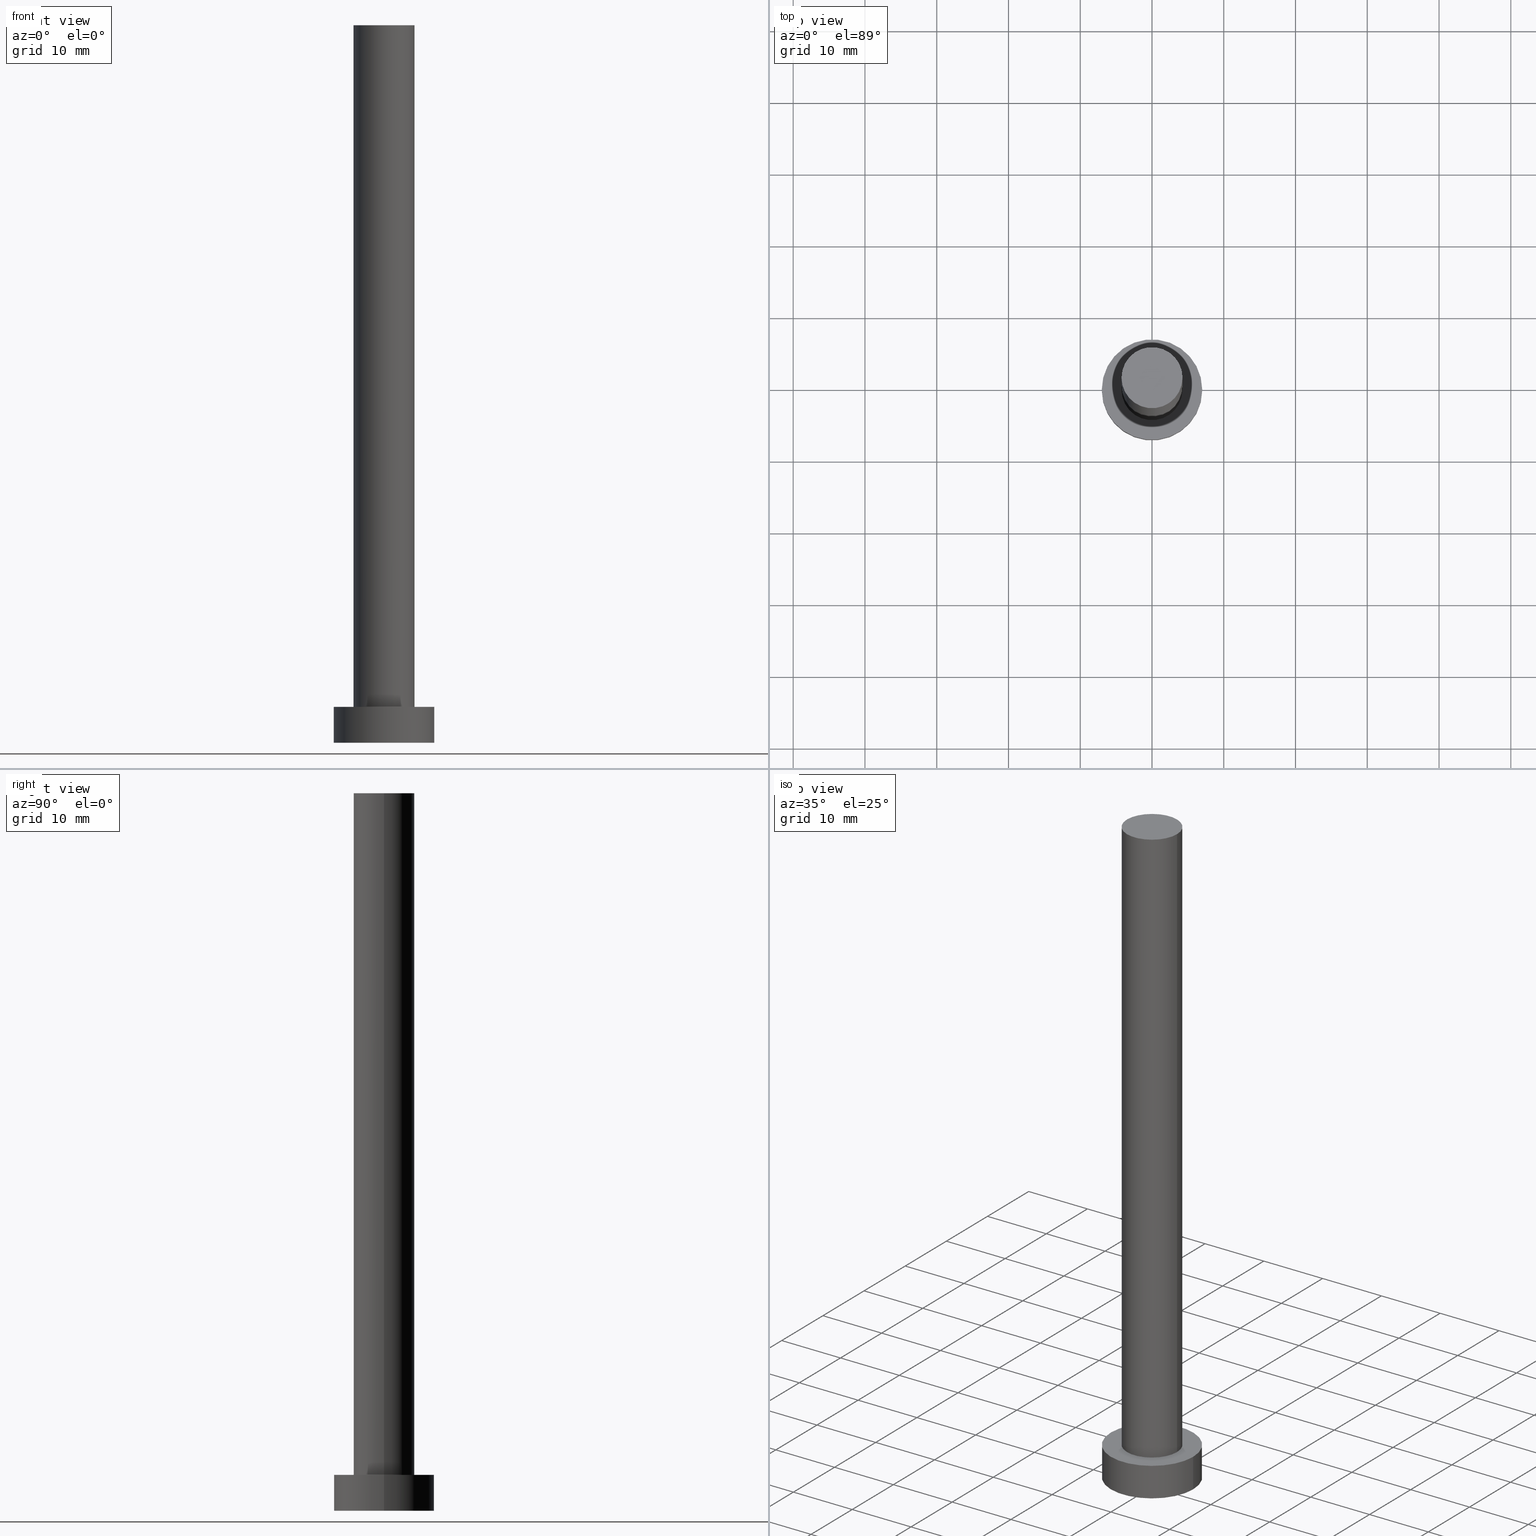
[diagram: canonical four-view strip — front | top / right | iso, engineering-drawing reading convention]
A machine part, canonical four-view strip (front | top / right | iso — engineering-drawing reading convention). The complete STEP part file that produces these views, byte-faithful:
ISO-10303-21;
HEADER;
FILE_DESCRIPTION (( 'STEP AP203' ),
    '1' );
FILE_NAME ('7e8a.STEP',
    '2023-02-13T14:20:16',
    ( '' ),
    ( '' ),
    'SwSTEP 2.0',
    'SolidWorks 2019',
    '' );
FILE_SCHEMA (( 'CONFIG_CONTROL_DESIGN' ));
ENDSEC;

DATA;
#1 = VECTOR ( 'NONE', #246, 1000.000000000000000 ) ;
#2 = VECTOR ( 'NONE', #132, 1000.000000000000000 ) ;
#3 = FACE_OUTER_BOUND ( 'NONE', #57, .T. ) ;
#4 = MECHANICAL_CONTEXT ( 'NONE', #72, 'mechanical' ) ;
#5 = ADVANCED_FACE ( 'NONE', ( #14 ), #94, .T. ) ;
#6 = CARTESIAN_POINT ( 'NONE',  ( 0.000000000000000000, 0.000000000000000000, 0.000000000000000000 ) ) ;
#7 = EDGE_CURVE ( 'NONE', #249, #220, #81, .T. ) ;
#8 = DATE_AND_TIME ( #247, #124 ) ;
#9 = DIRECTION ( 'NONE',  ( -1.000000000000000000, 0.000000000000000000, 0.000000000000000000 ) ) ;
#10 = DATE_TIME_ROLE ( 'classification_date' ) ;
#11 = LINE ( 'NONE', #92, #1 ) ;
#12 = EDGE_LOOP ( 'NONE', ( #113, #151, #17, #33 ) ) ;
#13 = CARTESIAN_POINT ( 'NONE',  ( 0.000000000000000000, 0.000000000000000000, 5.000000000000000000 ) ) ;
#14 = FACE_OUTER_BOUND ( 'NONE', #165, .T. ) ;
#15 = PRODUCT_DEFINITION ( 'NEZN�M�', '', #245, #190 ) ;
#16 = PLANE ( 'NONE',  #123 ) ;
#17 = ORIENTED_EDGE ( 'NONE', *, *, #7, .T. ) ;
#18 = CIRCLE ( 'NONE', #206, 4.250000000000000000 ) ;
#19 = CARTESIAN_POINT ( 'NONE',  ( -7.000000000000000000, 0.000000000000000000, 0.000000000000000000 ) ) ;
#20 = EDGE_CURVE ( 'NONE', #110, #254, #250, .T. ) ;
#21 = CARTESIAN_POINT ( 'NONE',  ( 0.000000000000000000, 0.000000000000000000, 100.0000000000000000 ) ) ;
#22 = DIRECTION ( 'NONE',  ( 1.000000000000000000, 0.000000000000000000, 0.000000000000000000 ) ) ;
#23 = DIRECTION ( 'NONE',  ( 0.000000000000000000, 0.000000000000000000, 1.000000000000000000 ) ) ;
#24 = AXIS2_PLACEMENT_3D ( 'NONE', #211, #23, #235 ) ;
#25 = PERSON_AND_ORGANIZATION_ROLE ( 'design_owner' ) ;
#26 = COORDINATED_UNIVERSAL_TIME_OFFSET ( 1, 0, .AHEAD. ) ;
#27 = APPROVAL_DATE_TIME ( #46, #88 ) ;
#28 =( GEOMETRIC_REPRESENTATION_CONTEXT ( 3 ) GLOBAL_UNCERTAINTY_ASSIGNED_CONTEXT ( ( #221 ) ) GLOBAL_UNIT_ASSIGNED_CONTEXT ( ( #69, #179, #103 ) ) REPRESENTATION_CONTEXT ( 'NONE', 'WORKASPACE' ) );
#29 = EDGE_LOOP ( 'NONE', ( #169, #251 ) ) ;
#30 = FACE_OUTER_BOUND ( 'NONE', #12, .T. ) ;
#31 = EDGE_CURVE ( 'NONE', #254, #73, #96, .T. ) ;
#32 = DIRECTION ( 'NONE',  ( 0.000000000000000000, 0.000000000000000000, 1.000000000000000000 ) ) ;
#33 = ORIENTED_EDGE ( 'NONE', *, *, #114, .F. ) ;
#34 = ADVANCED_FACE ( 'NONE', ( #3 ), #16, .F. ) ;
#35 = CARTESIAN_POINT ( 'NONE',  ( 0.000000000000000000, 0.000000000000000000, 5.000000000000000000 ) ) ;
#36 = AXIS2_PLACEMENT_3D ( 'NONE', #115, #32, #79 ) ;
#37 = ORIENTED_EDGE ( 'NONE', *, *, #31, .T. ) ;
#38 = AXIS2_PLACEMENT_3D ( 'NONE', #51, #196, #22 ) ;
#39 = DIRECTION ( 'NONE',  ( 1.000000000000000000, 0.000000000000000000, 0.000000000000000000 ) ) ;
#40 = DATE_AND_TIME ( #139, #199 ) ;
#41 = DIRECTION ( 'NONE',  ( -0.000000000000000000, -0.000000000000000000, -1.000000000000000000 ) ) ;
#42 = CC_DESIGN_PERSON_AND_ORGANIZATION_ASSIGNMENT ( #180, #189, ( #245 ) ) ;
#43 = AXIS2_PLACEMENT_3D ( 'NONE', #21, #143, #44 ) ;
#44 = DIRECTION ( 'NONE',  ( 1.000000000000000000, 0.000000000000000000, 0.000000000000000000 ) ) ;
#45 = EDGE_CURVE ( 'NONE', #73, #254, #18, .T. ) ;
#46 = DATE_AND_TIME ( #146, #89 ) ;
#47 = FACE_OUTER_BOUND ( 'NONE', #248, .T. ) ;
#48 = CARTESIAN_POINT ( 'NONE',  ( 4.250000000000000000, 5.204748896376250699E-16, 5.000000000000000000 ) ) ;
#49 = CYLINDRICAL_SURFACE ( 'NONE', #55, 7.000000000000000000 ) ;
#50 = PERSON_AND_ORGANIZATION ( #147, #82 ) ;
#51 = CARTESIAN_POINT ( 'NONE',  ( 0.000000000000000000, 0.000000000000000000, 0.000000000000000000 ) ) ;
#52 = CARTESIAN_POINT ( 'NONE',  ( -4.250000000000000000, 0.000000000000000000, 100.0000000000000000 ) ) ;
#53 = PERSON_AND_ORGANIZATION ( #147, #82 ) ;
#54 = EDGE_LOOP ( 'NONE', ( #223, #95, #224, #78 ) ) ;
#55 = AXIS2_PLACEMENT_3D ( 'NONE', #202, #106, #9 ) ;
#56 = ORIENTED_EDGE ( 'NONE', *, *, #7, .F. ) ;
#57 = EDGE_LOOP ( 'NONE', ( #74, #56 ) ) ;
#58 = DIRECTION ( 'NONE',  ( 1.000000000000000000, 0.000000000000000000, 0.000000000000000000 ) ) ;
#59 = ORIENTED_EDGE ( 'NONE', *, *, #20, .T. ) ;
#60 = DIRECTION ( 'NONE',  ( -0.000000000000000000, -0.000000000000000000, -1.000000000000000000 ) ) ;
#61 = APPROVAL_ROLE ( '' ) ;
#62 = DIRECTION ( 'NONE',  ( 0.000000000000000000, 0.000000000000000000, 1.000000000000000000 ) ) ;
#63 = DIRECTION ( 'NONE',  ( 0.000000000000000000, 0.000000000000000000, 1.000000000000000000 ) ) ;
#64 = EDGE_CURVE ( 'NONE', #131, #117, #98, .T. ) ;
#65 = CC_DESIGN_DATE_AND_TIME_ASSIGNMENT ( #181, #10, ( #105 ) ) ;
#66 = DIRECTION ( 'NONE',  ( -0.000000000000000000, -0.000000000000000000, -1.000000000000000000 ) ) ;
#67 = EDGE_CURVE ( 'NONE', #117, #131, #242, .T. ) ;
#68 = CARTESIAN_POINT ( 'NONE',  ( 0.000000000000000000, 0.000000000000000000, 100.0000000000000000 ) ) ;
#69 =( LENGTH_UNIT ( ) NAMED_UNIT ( * ) SI_UNIT ( .MILLI., .METRE. ) );
#70 = AXIS2_PLACEMENT_3D ( 'NONE', #232, #121, #188 ) ;
#71 = LINE ( 'NONE', #145, #133 ) ;
#72 = APPLICATION_CONTEXT ( 'configuration controlled 3d designs of mechanical parts and assemblies' ) ;
#73 = VERTEX_POINT ( 'NONE', #122 ) ;
#74 = ORIENTED_EDGE ( 'NONE', *, *, #215, .F. ) ;
#75 = DIRECTION ( 'NONE',  ( 1.000000000000000000, 0.000000000000000000, -0.000000000000000000 ) ) ;
#76 = ADVANCED_FACE ( 'NONE', ( #176 ), #209, .T. ) ;
#77 = LOCAL_TIME ( 15, 20, 16.00000000000000000, #26 ) ;
#78 = ORIENTED_EDGE ( 'NONE', *, *, #45, .T. ) ;
#79 = DIRECTION ( 'NONE',  ( 1.000000000000000000, 0.000000000000000000, 0.000000000000000000 ) ) ;
#80 = DIRECTION ( 'NONE',  ( 0.000000000000000000, 0.000000000000000000, 1.000000000000000000 ) ) ;
#81 = CIRCLE ( 'NONE', #36, 7.000000000000000000 ) ;
#82 = ORGANIZATION ( 'NEUR�EN�', 'NEUR�EN�', '' ) ;
#83 = ADVANCED_BREP_SHAPE_REPRESENTATION ( '7e8a', ( #84, #38 ), #28 ) ;
#84 = MANIFOLD_SOLID_BREP ( 'P�idat vysunut�m3', #173 ) ;
#85 = PERSON_AND_ORGANIZATION ( #147, #82 ) ;
#86 = APPROVAL_DATE_TIME ( #8, #175 ) ;
#87 = APPROVAL_ROLE ( '' ) ;
#88 = APPROVAL ( #236, 'NEUR�EN�' ) ;
#89 = LOCAL_TIME ( 15, 20, 16.00000000000000000, #163 ) ;
#90 = APPLICATION_PROTOCOL_DEFINITION ( 'international standard', 'config_control_design', 1994, #118 ) ;
#91 = PERSON_AND_ORGANIZATION ( #147, #82 ) ;
#92 = CARTESIAN_POINT ( 'NONE',  ( -7.000000000000000000, 0.000000000000000000, 5.000000000000000000 ) ) ;
#93 = APPROVAL_PERSON_ORGANIZATION ( #161, #88, #87 ) ;
#94 = CYLINDRICAL_SURFACE ( 'NONE', #182, 4.250000000000000000 ) ;
#95 = ORIENTED_EDGE ( 'NONE', *, *, #241, .F. ) ;
#96 = CIRCLE ( 'NONE', #70, 4.250000000000000000 ) ;
#97 = ORIENTED_EDGE ( 'NONE', *, *, #67, .T. ) ;
#98 = CIRCLE ( 'NONE', #109, 7.000000000000000000 ) ;
#99 = CYLINDRICAL_SURFACE ( 'NONE', #185, 4.250000000000000000 ) ;
#100 = CC_DESIGN_APPROVAL ( #197, ( #105 ) ) ;
#101 = DIRECTION ( 'NONE',  ( -0.000000000000000000, -0.000000000000000000, -1.000000000000000000 ) ) ;
#102 = CALENDAR_DATE ( 2023, 13, 2 ) ;
#103 =( NAMED_UNIT ( * ) SI_UNIT ( $, .STERADIAN. ) SOLID_ANGLE_UNIT ( ) );
#104 = ADVANCED_FACE ( 'NONE', ( #125, #172 ), #255, .T. ) ;
#105 = SECURITY_CLASSIFICATION ( '', '', #219 ) ;
#106 = DIRECTION ( 'NONE',  ( -0.000000000000000000, -0.000000000000000000, -1.000000000000000000 ) ) ;
#107 = ADVANCED_FACE ( 'NONE', ( #47 ), #108, .T. ) ;
#108 = CYLINDRICAL_SURFACE ( 'NONE', #162, 7.000000000000000000 ) ;
#109 = AXIS2_PLACEMENT_3D ( 'NONE', #35, #137, #39 ) ;
#110 = VERTEX_POINT ( 'NONE', #217 ) ;
#111 = DIRECTION ( 'NONE',  ( 1.000000000000000000, 0.000000000000000000, -0.000000000000000000 ) ) ;
#112 = LOCAL_TIME ( 15, 20, 16.00000000000000000, #237 ) ;
#113 = ORIENTED_EDGE ( 'NONE', *, *, #67, .F. ) ;
#114 = EDGE_CURVE ( 'NONE', #131, #220, #11, .T. ) ;
#115 = CARTESIAN_POINT ( 'NONE',  ( 0.000000000000000000, 0.000000000000000000, 0.000000000000000000 ) ) ;
#116 = PRODUCT_DEFINITION_SHAPE ( 'NONE', 'NONE',  #15 ) ;
#117 = VERTEX_POINT ( 'NONE', #152 ) ;
#118 = APPLICATION_CONTEXT ( 'configuration controlled 3d designs of mechanical parts and assemblies' ) ;
#119 = CARTESIAN_POINT ( 'NONE',  ( -4.250000000000000000, 0.000000000000000000, 100.0000000000000000 ) ) ;
#120 = SHAPE_DEFINITION_REPRESENTATION ( #116, #83 ) ;
#121 = DIRECTION ( 'NONE',  ( 0.000000000000000000, 0.000000000000000000, 1.000000000000000000 ) ) ;
#122 = CARTESIAN_POINT ( 'NONE',  ( -4.250000000000000000, 0.000000000000000000, 5.000000000000000000 ) ) ;
#123 = AXIS2_PLACEMENT_3D ( 'NONE', #168, #228, #75 ) ;
#124 = LOCAL_TIME ( 15, 20, 16.00000000000000000, #183 ) ;
#125 = FACE_BOUND ( 'NONE', #29, .T. ) ;
#126 = CIRCLE ( 'NONE', #192, 7.000000000000000000 ) ;
#127 = EDGE_CURVE ( 'NONE', #227, #73, #222, .T. ) ;
#128 = DIRECTION ( 'NONE',  ( -0.000000000000000000, -0.000000000000000000, -1.000000000000000000 ) ) ;
#129 = PRODUCT ( '7e8a', '7e8a', '', ( #4 ) ) ;
#130 = APPROVAL_STATUS ( 'not_yet_approved' ) ;
#131 = VERTEX_POINT ( 'NONE', #240 ) ;
#132 = DIRECTION ( 'NONE',  ( -0.000000000000000000, -0.000000000000000000, -1.000000000000000000 ) ) ;
#133 = VECTOR ( 'NONE', #101, 1000.000000000000000 ) ;
#134 = CC_DESIGN_PERSON_AND_ORGANIZATION_ASSIGNMENT ( #238, #200, ( #15 ) ) ;
#135 = DIRECTION ( 'NONE',  ( 0.000000000000000000, 0.000000000000000000, 1.000000000000000000 ) ) ;
#136 = ORIENTED_EDGE ( 'NONE', *, *, #226, .T. ) ;
#137 = DIRECTION ( 'NONE',  ( 0.000000000000000000, 0.000000000000000000, 1.000000000000000000 ) ) ;
#138 = DIRECTION ( 'NONE',  ( 1.000000000000000000, 0.000000000000000000, 0.000000000000000000 ) ) ;
#139 = CALENDAR_DATE ( 2023, 13, 2 ) ;
#140 = FACE_OUTER_BOUND ( 'NONE', #54, .T. ) ;
#141 = APPLICATION_PROTOCOL_DEFINITION ( 'international standard', 'config_control_design', 1994, #72 ) ;
#142 = DIRECTION ( 'NONE',  ( 1.000000000000000000, 0.000000000000000000, 0.000000000000000000 ) ) ;
#143 = DIRECTION ( 'NONE',  ( 0.000000000000000000, 0.000000000000000000, 1.000000000000000000 ) ) ;
#144 = DIRECTION ( 'NONE',  ( -1.000000000000000000, 0.000000000000000000, 0.000000000000000000 ) ) ;
#145 = CARTESIAN_POINT ( 'NONE',  ( 7.000000000000000000, 8.572527594031473190E-16, 5.000000000000000000 ) ) ;
#146 = CALENDAR_DATE ( 2023, 13, 2 ) ;
#147 = PERSON ( 'NEUR�EN�', 'NEUR�EN�', 'NEUR�EN�', ('NEUR�EN�'), ('NEUR�EN�'), ('NEUR�EN�') ) ;
#148 = DIRECTION ( 'NONE',  ( -1.000000000000000000, 0.000000000000000000, 0.000000000000000000 ) ) ;
#149 = DIRECTION ( 'NONE',  ( 0.000000000000000000, 0.000000000000000000, 1.000000000000000000 ) ) ;
#150 = APPROVAL_STATUS ( 'not_yet_approved' ) ;
#151 = ORIENTED_EDGE ( 'NONE', *, *, #177, .T. ) ;
#152 = CARTESIAN_POINT ( 'NONE',  ( 7.000000000000000000, 8.572527594031473190E-16, 5.000000000000000000 ) ) ;
#153 = EDGE_LOOP ( 'NONE', ( #187, #97 ) ) ;
#154 = ORIENTED_EDGE ( 'NONE', *, *, #226, .F. ) ;
#155 = CARTESIAN_POINT ( 'NONE',  ( 4.250000000000000000, 5.204748896376250699E-16, 100.0000000000000000 ) ) ;
#156 = CC_DESIGN_PERSON_AND_ORGANIZATION_ASSIGNMENT ( #193, #218, ( #245 ) ) ;
#157 = ADVANCED_FACE ( 'NONE', ( #30 ), #49, .T. ) ;
#158 = CC_DESIGN_DATE_AND_TIME_ASSIGNMENT ( #178, #214, ( #15 ) ) ;
#159 = CC_DESIGN_PERSON_AND_ORGANIZATION_ASSIGNMENT ( #50, #186, ( #105 ) ) ;
#160 = CC_DESIGN_PERSON_AND_ORGANIZATION_ASSIGNMENT ( #85, #25, ( #129 ) ) ;
#161 = PERSON_AND_ORGANIZATION ( #147, #82 ) ;
#162 = AXIS2_PLACEMENT_3D ( 'NONE', #13, #128, #148 ) ;
#163 = COORDINATED_UNIVERSAL_TIME_OFFSET ( 1, 0, .AHEAD. ) ;
#164 = AXIS2_PLACEMENT_3D ( 'NONE', #243, #149, #111 ) ;
#165 = EDGE_LOOP ( 'NONE', ( #154, #59, #37, #171 ) ) ;
#166 = ORIENTED_EDGE ( 'NONE', *, *, #215, .T. ) ;
#167 = ORIENTED_EDGE ( 'NONE', *, *, #241, .T. ) ;
#168 = CARTESIAN_POINT ( 'NONE',  ( 0.000000000000000000, 0.000000000000000000, 0.000000000000000000 ) ) ;
#169 = ORIENTED_EDGE ( 'NONE', *, *, #45, .F. ) ;
#170 = AXIS2_PLACEMENT_3D ( 'NONE', #253, #80, #138 ) ;
#171 = ORIENTED_EDGE ( 'NONE', *, *, #127, .F. ) ;
#172 = FACE_OUTER_BOUND ( 'NONE', #153, .T. ) ;
#173 = CLOSED_SHELL ( 'NONE', ( #5, #157, #107, #104, #34, #198, #76 ) ) ;
#174 = APPROVAL_PERSON_ORGANIZATION ( #53, #197, #61 ) ;
#175 = APPROVAL ( #130, 'NEUR�EN�' ) ;
#176 = FACE_OUTER_BOUND ( 'NONE', #229, .T. ) ;
#177 = EDGE_CURVE ( 'NONE', #117, #249, #71, .T. ) ;
#178 = DATE_AND_TIME ( #102, #77 ) ;
#179 =( NAMED_UNIT ( * ) PLANE_ANGLE_UNIT ( ) SI_UNIT ( $, .RADIAN. ) );
#180 = PERSON_AND_ORGANIZATION ( #147, #82 ) ;
#181 = DATE_AND_TIME ( #244, #112 ) ;
#182 = AXIS2_PLACEMENT_3D ( 'NONE', #230, #60, #208 ) ;
#183 = COORDINATED_UNIVERSAL_TIME_OFFSET ( 1, 0, .AHEAD. ) ;
#184 = ORIENTED_EDGE ( 'NONE', *, *, #177, .F. ) ;
#185 = AXIS2_PLACEMENT_3D ( 'NONE', #68, #66, #144 ) ;
#186 = PERSON_AND_ORGANIZATION_ROLE ( 'classification_officer' ) ;
#187 = ORIENTED_EDGE ( 'NONE', *, *, #64, .T. ) ;
#188 = DIRECTION ( 'NONE',  ( 1.000000000000000000, 0.000000000000000000, 0.000000000000000000 ) ) ;
#189 = PERSON_AND_ORGANIZATION_ROLE ( 'creator' ) ;
#190 = DESIGN_CONTEXT ( 'detailed design', #118, 'design' ) ;
#191 = PRODUCT_RELATED_PRODUCT_CATEGORY ( 'detail', '', ( #129 ) ) ;
#192 = AXIS2_PLACEMENT_3D ( 'NONE', #6, #62, #194 ) ;
#193 = PERSON_AND_ORGANIZATION ( #147, #82 ) ;
#194 = DIRECTION ( 'NONE',  ( 1.000000000000000000, 0.000000000000000000, 0.000000000000000000 ) ) ;
#195 = CIRCLE ( 'NONE', #170, 4.250000000000000000 ) ;
#196 = DIRECTION ( 'NONE',  ( 0.000000000000000000, 0.000000000000000000, 1.000000000000000000 ) ) ;
#197 = APPROVAL ( #150, 'NEUR�EN�' ) ;
#198 = ADVANCED_FACE ( 'NONE', ( #140 ), #99, .T. ) ;
#199 = LOCAL_TIME ( 15, 20, 16.00000000000000000, #205 ) ;
#200 = PERSON_AND_ORGANIZATION_ROLE ( 'creator' ) ;
#201 = VECTOR ( 'NONE', #41, 1000.000000000000000 ) ;
#202 = CARTESIAN_POINT ( 'NONE',  ( 0.000000000000000000, 0.000000000000000000, 5.000000000000000000 ) ) ;
#203 = ORIENTED_EDGE ( 'NONE', *, *, #64, .F. ) ;
#204 = ORIENTED_EDGE ( 'NONE', *, *, #114, .T. ) ;
#205 = COORDINATED_UNIVERSAL_TIME_OFFSET ( 1, 0, .AHEAD. ) ;
#206 = AXIS2_PLACEMENT_3D ( 'NONE', #225, #135, #58 ) ;
#207 = CC_DESIGN_APPROVAL ( #175, ( #15 ) ) ;
#208 = DIRECTION ( 'NONE',  ( -1.000000000000000000, 0.000000000000000000, 0.000000000000000000 ) ) ;
#209 = PLANE ( 'NONE',  #24 ) ;
#210 = CC_DESIGN_APPROVAL ( #88, ( #245 ) ) ;
#211 = CARTESIAN_POINT ( 'NONE',  ( 0.000000000000000000, 0.000000000000000000, 100.0000000000000000 ) ) ;
#212 = AXIS2_PLACEMENT_3D ( 'NONE', #233, #63, #142 ) ;
#213 = APPROVAL_PERSON_ORGANIZATION ( #91, #175, #239 ) ;
#214 = DATE_TIME_ROLE ( 'creation_date' ) ;
#215 = EDGE_CURVE ( 'NONE', #220, #249, #126, .T. ) ;
#216 = CARTESIAN_POINT ( 'NONE',  ( 7.000000000000000000, 8.572527594031473190E-16, 0.000000000000000000 ) ) ;
#217 = CARTESIAN_POINT ( 'NONE',  ( 4.250000000000000000, 5.204748896376250699E-16, 100.0000000000000000 ) ) ;
#218 = PERSON_AND_ORGANIZATION_ROLE ( 'design_supplier' ) ;
#219 = SECURITY_CLASSIFICATION_LEVEL ( 'unclassified' ) ;
#220 = VERTEX_POINT ( 'NONE', #19 ) ;
#221 = UNCERTAINTY_MEASURE_WITH_UNIT (LENGTH_MEASURE( 1.000000000000000082E-05 ), #69, 'distance_accuracy_value', 'NONE');
#222 = LINE ( 'NONE', #52, #2 ) ;
#223 = ORIENTED_EDGE ( 'NONE', *, *, #20, .F. ) ;
#224 = ORIENTED_EDGE ( 'NONE', *, *, #127, .T. ) ;
#225 = CARTESIAN_POINT ( 'NONE',  ( 0.000000000000000000, 0.000000000000000000, 5.000000000000000000 ) ) ;
#226 = EDGE_CURVE ( 'NONE', #110, #227, #195, .T. ) ;
#227 = VERTEX_POINT ( 'NONE', #119 ) ;
#228 = DIRECTION ( 'NONE',  ( 0.000000000000000000, 0.000000000000000000, 1.000000000000000000 ) ) ;
#229 = EDGE_LOOP ( 'NONE', ( #167, #136 ) ) ;
#230 = CARTESIAN_POINT ( 'NONE',  ( 0.000000000000000000, 0.000000000000000000, 100.0000000000000000 ) ) ;
#231 = CC_DESIGN_SECURITY_CLASSIFICATION ( #105, ( #245 ) ) ;
#232 = CARTESIAN_POINT ( 'NONE',  ( 0.000000000000000000, 0.000000000000000000, 5.000000000000000000 ) ) ;
#233 = CARTESIAN_POINT ( 'NONE',  ( 0.000000000000000000, 0.000000000000000000, 5.000000000000000000 ) ) ;
#234 = APPROVAL_DATE_TIME ( #40, #197 ) ;
#235 = DIRECTION ( 'NONE',  ( 1.000000000000000000, 0.000000000000000000, -0.000000000000000000 ) ) ;
#236 = APPROVAL_STATUS ( 'not_yet_approved' ) ;
#237 = COORDINATED_UNIVERSAL_TIME_OFFSET ( 1, 0, .AHEAD. ) ;
#238 = PERSON_AND_ORGANIZATION ( #147, #82 ) ;
#239 = APPROVAL_ROLE ( '' ) ;
#240 = CARTESIAN_POINT ( 'NONE',  ( -7.000000000000000000, 0.000000000000000000, 5.000000000000000000 ) ) ;
#241 = EDGE_CURVE ( 'NONE', #227, #110, #252, .T. ) ;
#242 = CIRCLE ( 'NONE', #212, 7.000000000000000000 ) ;
#243 = CARTESIAN_POINT ( 'NONE',  ( 0.000000000000000000, 0.000000000000000000, 5.000000000000000000 ) ) ;
#244 = CALENDAR_DATE ( 2023, 13, 2 ) ;
#245 = PRODUCT_DEFINITION_FORMATION_WITH_SPECIFIED_SOURCE ( 'LIBOVOLN�', '', #129, .NOT_KNOWN. ) ;
#246 = DIRECTION ( 'NONE',  ( -0.000000000000000000, -0.000000000000000000, -1.000000000000000000 ) ) ;
#247 = CALENDAR_DATE ( 2023, 13, 2 ) ;
#248 = EDGE_LOOP ( 'NONE', ( #184, #203, #204, #166 ) ) ;
#249 = VERTEX_POINT ( 'NONE', #216 ) ;
#250 = LINE ( 'NONE', #155, #201 ) ;
#251 = ORIENTED_EDGE ( 'NONE', *, *, #31, .F. ) ;
#252 = CIRCLE ( 'NONE', #43, 4.250000000000000000 ) ;
#253 = CARTESIAN_POINT ( 'NONE',  ( 0.000000000000000000, 0.000000000000000000, 100.0000000000000000 ) ) ;
#254 = VERTEX_POINT ( 'NONE', #48 ) ;
#255 = PLANE ( 'NONE',  #164 ) ;
ENDSEC;
END-ISO-10303-21;
